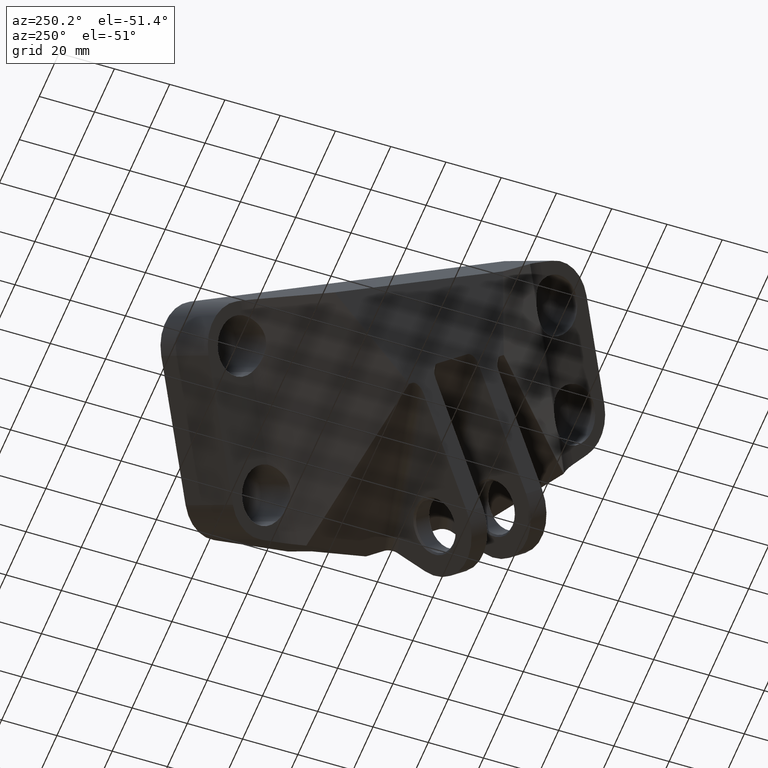
[diagram: clean part render]
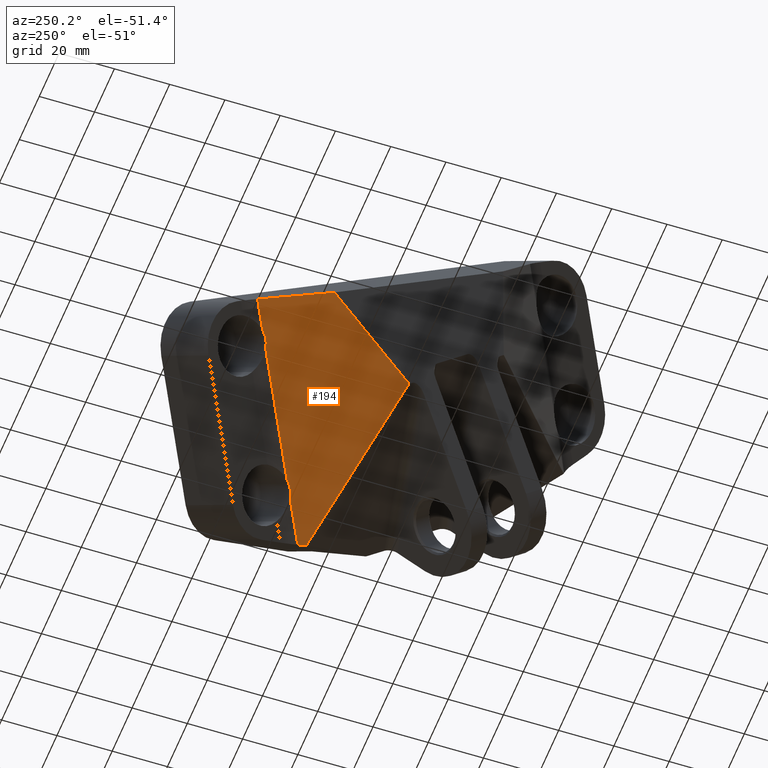
[diagram: same view with one face highlighted and labeled with its STEP entity id]
A machine part, auxiliary view. The second image highlights one B-rep face of the part: STEP entity #194.
In plain terms, the highlighted planar face has unit normal (0.5738, 0.0553, 0.8171).
Its self-contained STEP definition (entity closure, byte-faithful):
#106=ELLIPSE('',#1140,0.479200723427388,0.415);
#107=ELLIPSE('',#1141,0.479200723427388,0.415);
#162=FACE_OUTER_BOUND('',#337,.T.);
#194=ADVANCED_FACE('',(#162),#246,.F.);
#246=PLANE('',#1142);
#337=EDGE_LOOP('',(#609,#610,#611,#612,#613,#614,#615,#616,#617));
#433=LINE('',#1612,#507);
#434=LINE('',#1621,#508);
#435=LINE('',#1630,#509);
#436=LINE('',#1632,#510);
#437=LINE('',#1634,#511);
#438=LINE('',#1636,#512);
#439=LINE('',#1638,#513);
#507=VECTOR('',#1295,1.);
#508=VECTOR('',#1300,1.);
#509=VECTOR('',#1305,1.);
#510=VECTOR('',#1306,1.);
#511=VECTOR('',#1307,1.);
#512=VECTOR('',#1308,1.);
#513=VECTOR('',#1309,1.);
#609=ORIENTED_EDGE('',*,*,#975,.T.);
#610=ORIENTED_EDGE('',*,*,#977,.T.);
#611=ORIENTED_EDGE('',*,*,#978,.T.);
#612=ORIENTED_EDGE('',*,*,#979,.T.);
#613=ORIENTED_EDGE('',*,*,#980,.T.);
#614=ORIENTED_EDGE('',*,*,#981,.T.);
#615=ORIENTED_EDGE('',*,*,#982,.T.);
#616=ORIENTED_EDGE('',*,*,#972,.T.);
#617=ORIENTED_EDGE('',*,*,#983,.T.);
#865=VERTEX_POINT('',#1611);
#866=VERTEX_POINT('',#1613);
#867=VERTEX_POINT('',#1620);
#868=VERTEX_POINT('',#1622);
#869=VERTEX_POINT('',#1629);
#870=VERTEX_POINT('',#1631);
#871=VERTEX_POINT('',#1633);
#872=VERTEX_POINT('',#1635);
#873=VERTEX_POINT('',#1637);
#972=EDGE_CURVE('',#866,#865,#433,.T.);
#975=EDGE_CURVE('',#868,#867,#434,.T.);
#977=EDGE_CURVE('',#867,#869,#106,.T.);
#978=EDGE_CURVE('',#869,#870,#435,.T.);
#979=EDGE_CURVE('',#870,#871,#436,.T.);
#980=EDGE_CURVE('',#871,#872,#437,.T.);
#981=EDGE_CURVE('',#872,#873,#438,.T.);
#982=EDGE_CURVE('',#873,#866,#439,.T.);
#983=EDGE_CURVE('',#865,#868,#107,.T.);
#1140=AXIS2_PLACEMENT_3D('',#1628,#1303,#1304);
#1141=AXIS2_PLACEMENT_3D('',#1639,#1310,#1311);
#1142=AXIS2_PLACEMENT_3D('',#1640,#1312,#1313);
#1295=DIRECTION('',(0.,-0.748974013865747,0.662599371078657));
#1300=DIRECTION('',(0.,-0.748974013865747,0.662599371078657));
#1303=DIRECTION('',(0.500000000000002,-0.573827887885708,-0.648630522782135));
#1304=DIRECTION('',(0.866025403784438,0.331299685539349,0.374487006932858));
#1305=DIRECTION('',(0.,-0.748974013865747,0.662599371078657));
#1306=DIRECTION('',(0.830680390333025,0.105989350662186,0.546567787801643));
#1307=DIRECTION('',(0.5906618582144,0.773696364658982,-0.229156070319309));
#1308=DIRECTION('',(-0.430836289233121,0.484896353248509,-0.761088443274586));
#1309=DIRECTION('',(-0.861017202782088,-0.248951853131037,-0.443477565763965));
#1310=DIRECTION('',(0.500000000000002,-0.573827887885708,-0.648630522782135));
#1311=DIRECTION('',(0.866025403784438,0.331299685539349,0.374487006932858));
#1312=DIRECTION('',(0.5,-0.573827887885708,-0.648630522782135));
#1313=DIRECTION('',(0.,0.748974013865747,-0.662599371078657));
#1611=CARTESIAN_POINT('',(-5.43443688813999,1.29209671860744,0.169187667568588));
#1612=CARTESIAN_POINT('',(-5.43443688813999,3.08665584129771,-1.41841580604295));
#1613=CARTESIAN_POINT('',(-5.43443688813999,1.61304035343224,-0.11474347910632));
#1620=CARTESIAN_POINT('',(-5.43443688813999,-0.243333898666991,1.52754635893344));
#1621=CARTESIAN_POINT('',(-5.43443688813999,3.08665584129771,-1.41841580604295));
#1622=CARTESIAN_POINT('',(-5.43443688813999,1.09941989194942,0.339644241230062));
#1628=CARTESIAN_POINT('',(-5.82900000000059,-0.490613190073781,1.4421575274197));
#1629=CARTESIAN_POINT('',(-5.43443688813999,-0.436010725325101,1.698002932595));
#1630=CARTESIAN_POINT('',(-5.43443688813999,3.08665584129771,-1.41841580604295));
#1631=CARTESIAN_POINT('',(-5.43443688813999,-0.913703659616512,2.12060643014028));
#1632=CARTESIAN_POINT('',(-3.31736201591452,-0.643578839503175,3.51359095582386));
#1633=CARTESIAN_POINT('',(-5.3342158855597,-0.900916119294392,2.18654944782678));
#1634=CARTESIAN_POINT('',(-3.05894336186196,2.07941866229298,1.30382356467552));
#1635=CARTESIAN_POINT('',(-3.81535664814024,1.08860775816167,1.59728537164721));
#1636=CARTESIAN_POINT('',(-5.52216633690361,3.00958288131978,-1.4178578775418));
#1637=CARTESIAN_POINT('',(-4.51700987992698,1.87830236337708,0.357788655041236));
#1638=CARTESIAN_POINT('',(-5.00225449507947,1.73800023494836,0.107857410888898));
#1639=CARTESIAN_POINT('',(-5.8290000000006,1.04481742720067,0.0837988360548272));
#1640=CARTESIAN_POINT('',(-5.43443688813999,3.08665584129769,-1.41841580604299));